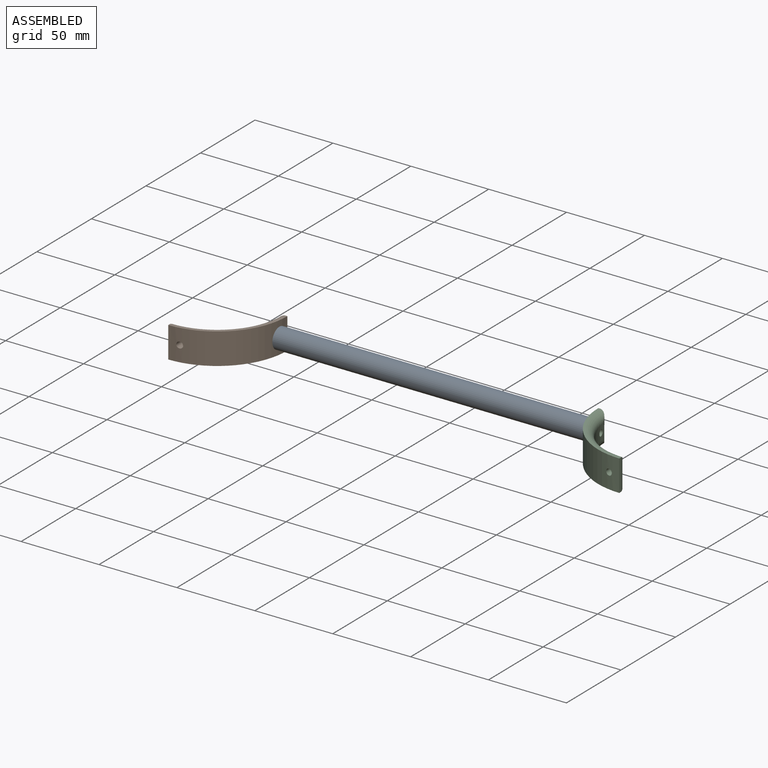
[diagram: assembled view]
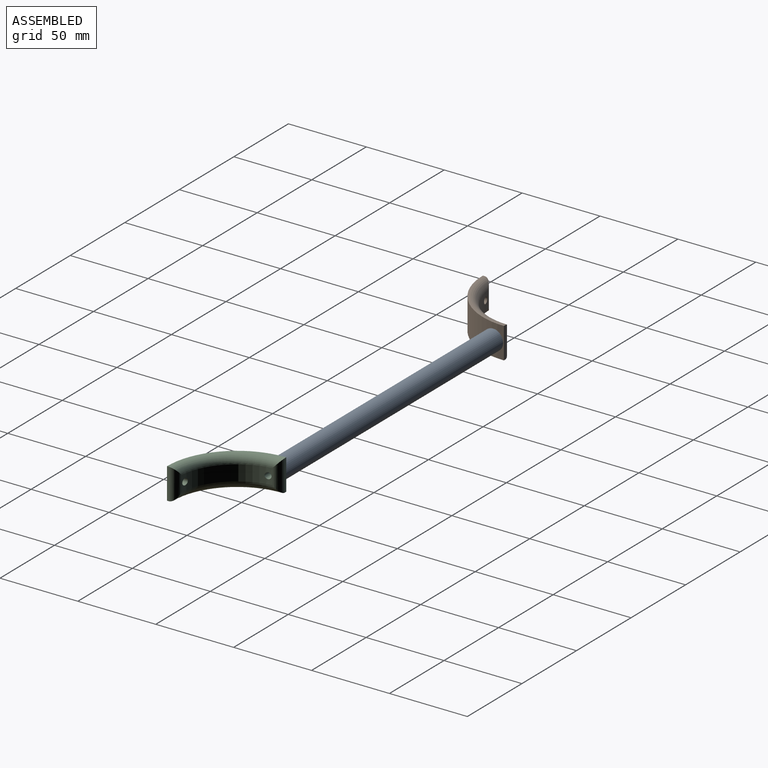
[diagram: assembled view, second angle]
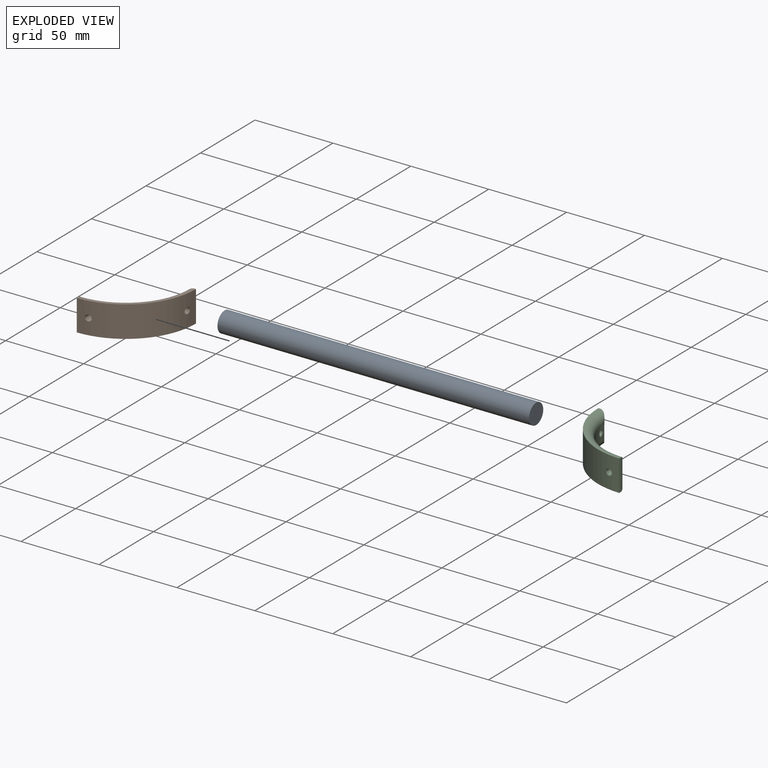
[diagram: exploded view]
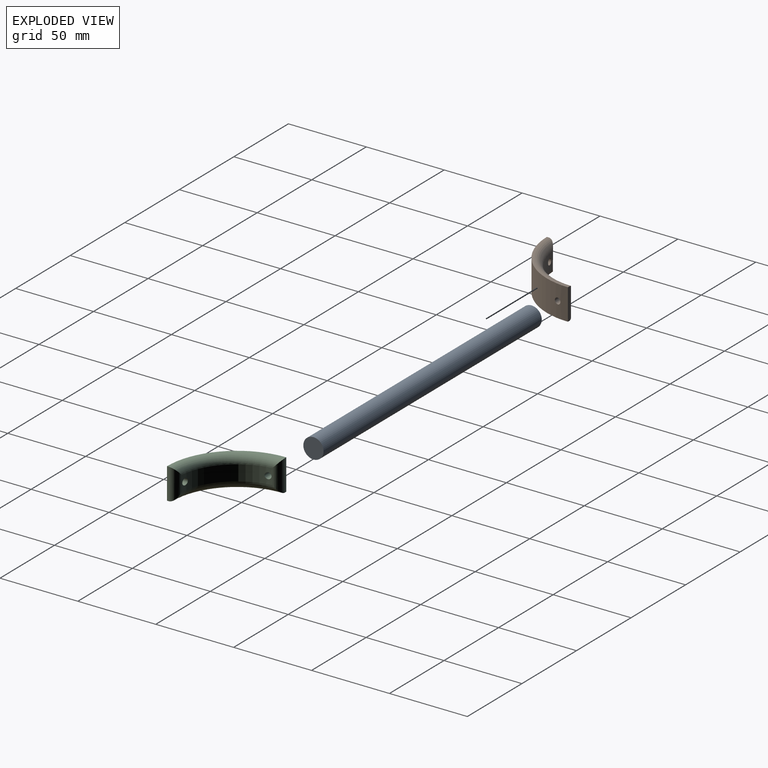
[diagram: exploded view, second angle]
ASSEMBLY  parts=3 mates=2
PART A: 3 faces, bbox 13x13x200 mm
  f0: cylinder r=6.5mm len=200mm, axis (0,0,-1), area 8168.1mm2, adj f1,f2
  f1: plane 13x13mm, normal (0,0,1), area 132.7mm2, adj f0
  f2: plane 13x13mm, normal (0,0,-1), area 132.7mm2, adj f0
PART B: 12 faces, bbox 51.5x51.5x20 mm
  f0: cylinder r=39mm len=34.32mm, axis (0,0,-1), area 498.2mm2, adj f6,f7,f8,f9,f10,f11
  f1: plane 20x1.29mm, normal (1,0,0), area 25.7mm2, adj f2,f4,f5,f7,f8,f9
  f2: cylinder r=45mm len=45mm, axis (0,0,-1), area 1388.2mm2, adj f1,f3,f4,f5,f10,f11
  f3: plane 20x1.29mm, normal (0,-1,0), area 25.7mm2, adj f2,f4,f5,f6,f7,f8
  f4: plane 45x45mm, normal (0,0,1), area 69.9mm2, adj f1,f2,f3,f7
  f5: plane 45x45mm, normal (0,0,-1), area 69.9mm2, adj f1,f2,f3,f8
  f6: cylinder r=5mm len=19.98mm, axis (0,0,-1), area 118.6mm2, adj f0,f3,f7,f8
  f7: torus R=44mm, axis (0,0,1), area 479.1mm2, adj f0,f1,f3,f4,f6,f9
  f8: torus R=44mm, axis (0,0,1), area 479.1mm2, adj f0,f1,f3,f5,f6,f9
  f9: cylinder r=5mm len=19.98mm, axis (0,0,-1), area 118.6mm2, adj f0,f1,f7,f8
  f10: cylinder r=2mm len=6.77mm, axis (0,-1,0), area 76.5mm2, adj f0,f2
  f11: cylinder r=2mm len=6.77mm, axis (1,0,0), area 76.5mm2, adj f0,f2
PART C: same geometry as B
PLACE A rot(axis=(0,1,0),90deg) t=(-16.36,10.1,-22.93)mm
PLACE B rot(axis=(0,0,1),180deg) t=(-161.12,17.1,-32.93)mm
PLACE C rot(axis=(0,0,1),90deg) t=(128.41,17.1,-32.93)mm
MATE fastened B.f11 <-> A.f0  axis (-1,0,0) through (-116.36,10.1,-22.93)mm
MATE fastened C.f10 <-> A.f0  axis (1,0,0) through (83.64,10.1,-22.93)mm
